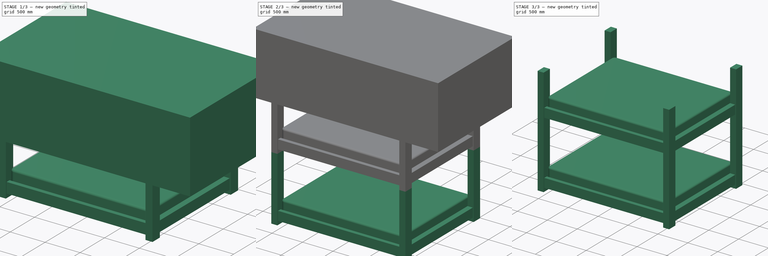
[diagram: build sequence overview — one tinted view per stage of 3, left to right]
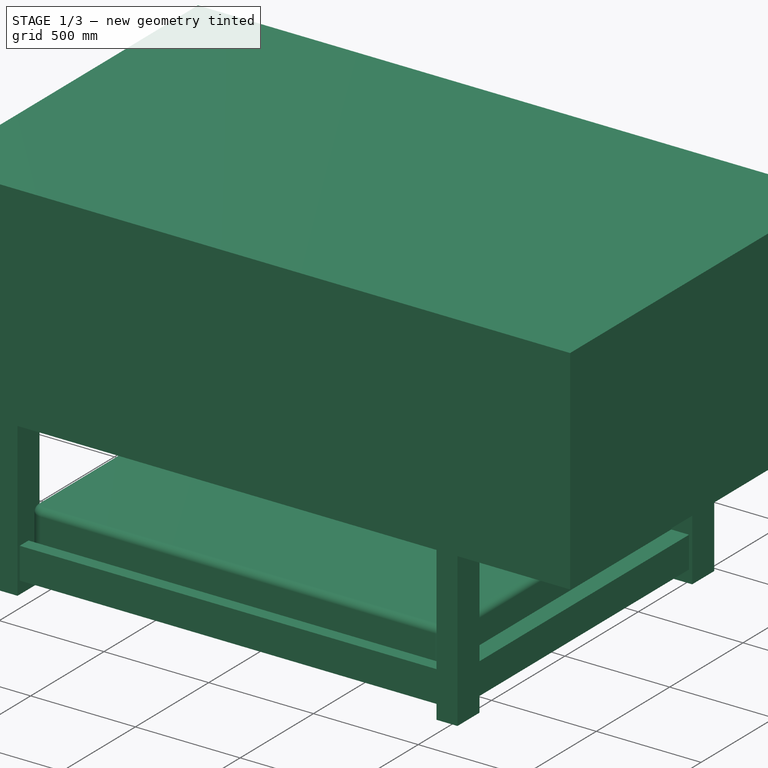
[diagram: stage 1 of 3 — iso view after this stage's code; geometry added in this stage tinted green]
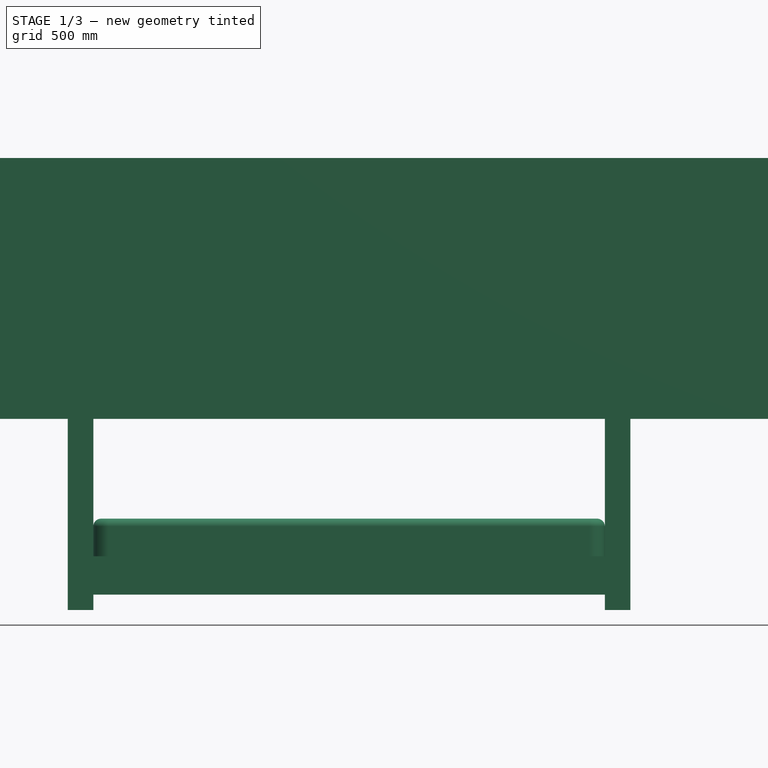
[diagram: stage 1 of 3 — front view after this stage's code; geometry added in this stage tinted green]
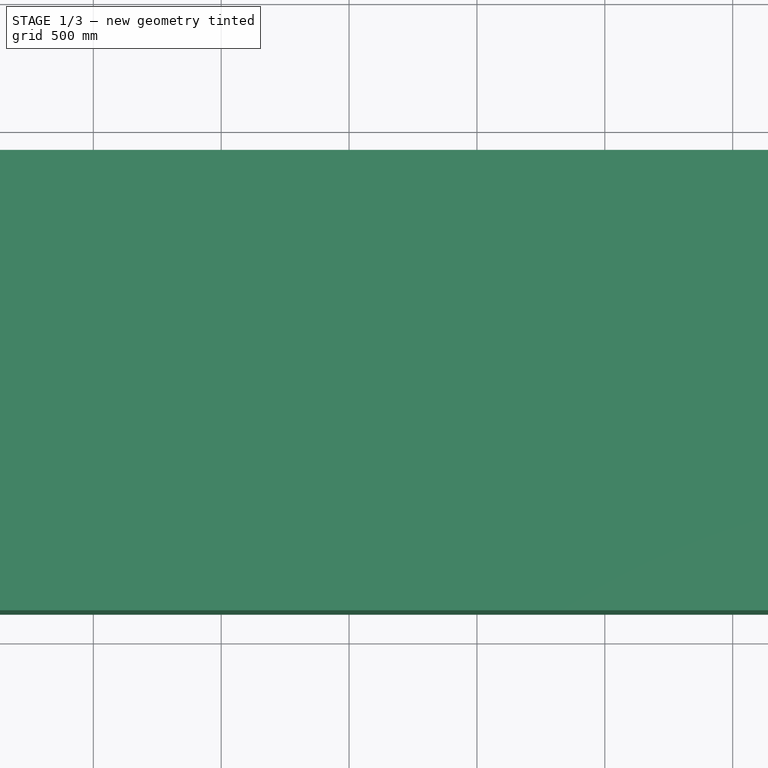
[diagram: stage 1 of 3 — top view after this stage's code; geometry added in this stage tinted green]
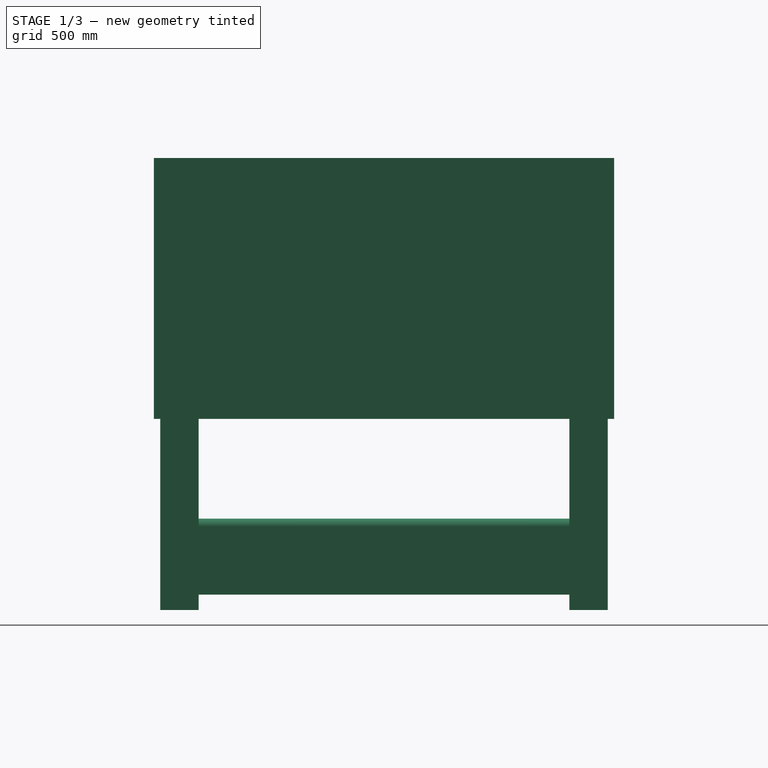
[diagram: stage 1 of 3 — right view after this stage's code; geometry added in this stage tinted green]
FCSTD DOCUMENT  (FreeCAD 0.17R13509 (Git))
Label: 190308 Bett_asm_rev01
License: All rights reserved
LicenseURL: http://en.wikipedia.org/wiki/All_rights_reserved
objects: App::FeaturePython×6, Drawing::FeatureViewPart×4, Part::FeaturePython×2, Sketcher::SketchObject×2, App::Part×1, Part::MultiFuse×1, PartDesign::Pad×1, PartDesign::ShapeBinder×1, PartDesign::Body×1, Part::Cut×1, Drawing::FeaturePage×1
note: 10 computed .brp shape members not serialized (recipe doc carries the construction recipe); baked Part::Feature solids carry a one-line shape summary decoded from their .brp

FEATURE [Part::FeaturePython] _90308_Bett_rev00_01001  # a2plus imported part (geometry in sourceFile) (typed FeaturePython)
  Placement = pos=(0,0,1060) rot=(0,0,1;0rad)
  fixedPosition = false
  sourceFile = M:/52 Proj/XX_StudioBinn/Bett/190308 Bett_rev00.FCStd
  timeLastImport = 1.5521e+09
  updateColors = true
FEATURE [Sketcher::SketchObject] Sketch
  MapMode = 5
  Placement = pos=(0,0,0) rot=(1,0,0;1.5708rad)
  Support = -> [XZ_Plane001]
  sketch-geometry (4):
    g0: LineSegment StartX=-1381.83 StartY=2680 StartZ=0 EndX=1655 EndY=2680 EndZ=0
    g1: LineSegment StartX=1655 StartY=2680 StartZ=0 EndX=1655 EndY=1660 EndZ=0
    g2: LineSegment StartX=1655 StartY=1660 StartZ=0 EndX=-1381.83 EndY=1660 EndZ=0
    g3: LineSegment StartX=-1381.83 StartY=1660 StartZ=0 EndX=-1381.83 EndY=2680 EndZ=0
  constraints (8):
    c: Coincident(g0,g1)
    c: Coincident(g1,g2)
    c: Coincident(g2,g3)
    c: Coincident(g3,g0)
    c: Horizontal(g0)
    c: Horizontal(g2)
    c: Vertical(g1)
    c: Vertical(g3)
FEATURE [PartDesign::Pad] Pad
  Length = 1800
  Length2 = 100
  Midplane = true
  Placement = pos=(0,0,0) rot=(1,0,0;1.5708rad)
  Profile = -> Sketch
  Type = 0
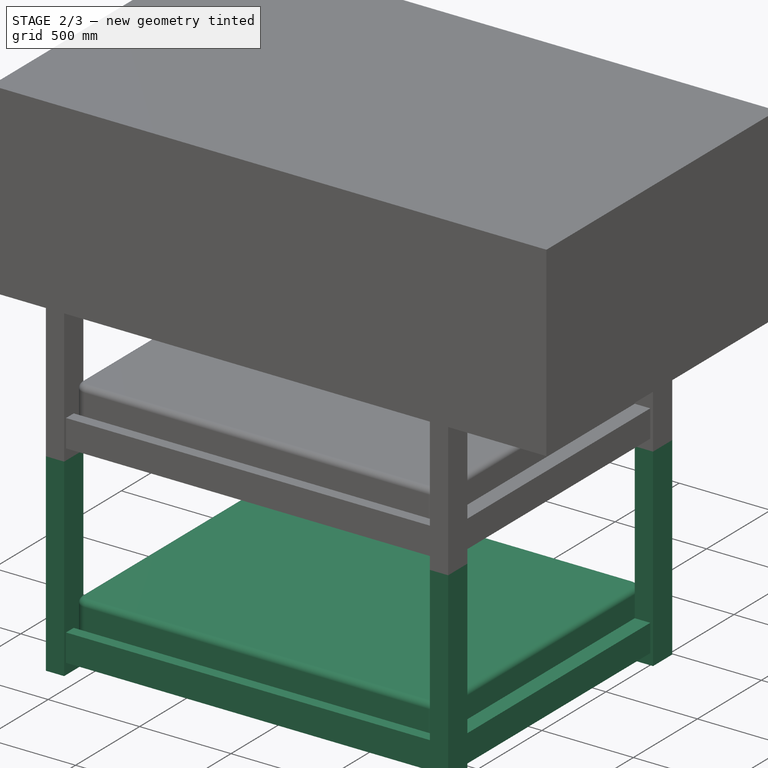
[diagram: stage 2 of 3 — iso view after this stage's code; geometry added in this stage tinted green]
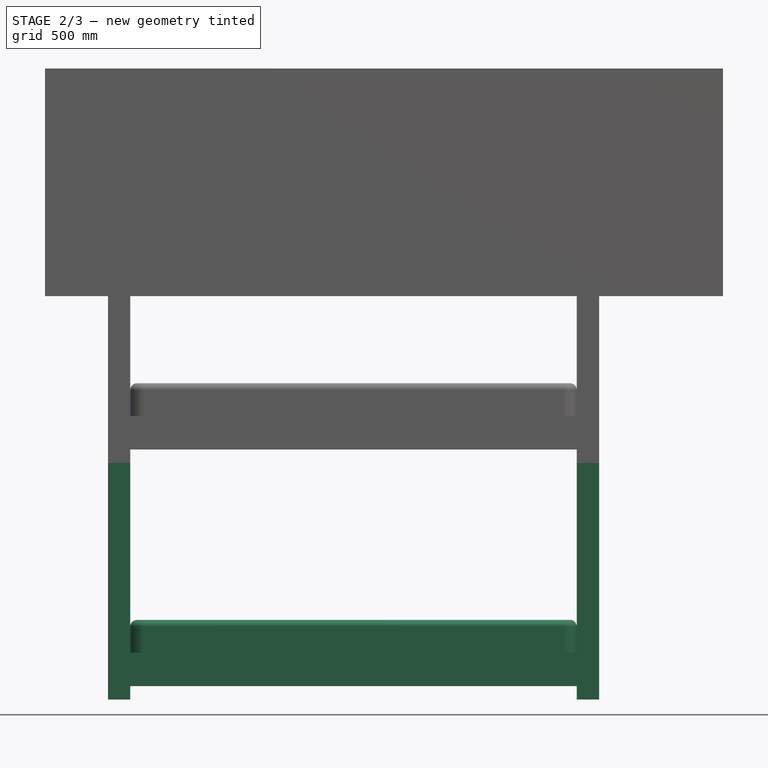
[diagram: stage 2 of 3 — front view after this stage's code; geometry added in this stage tinted green]
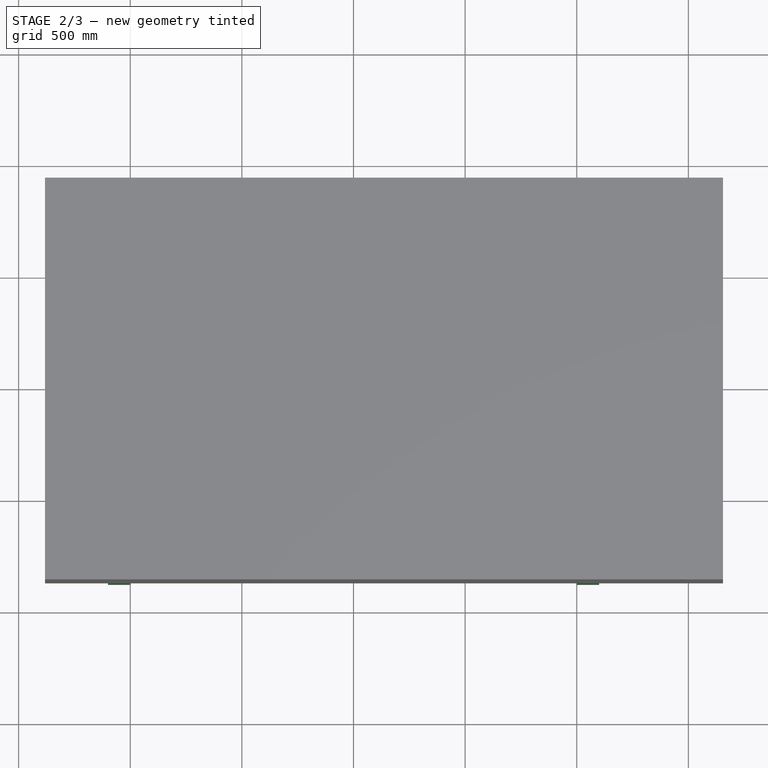
[diagram: stage 2 of 3 — top view after this stage's code; geometry added in this stage tinted green]
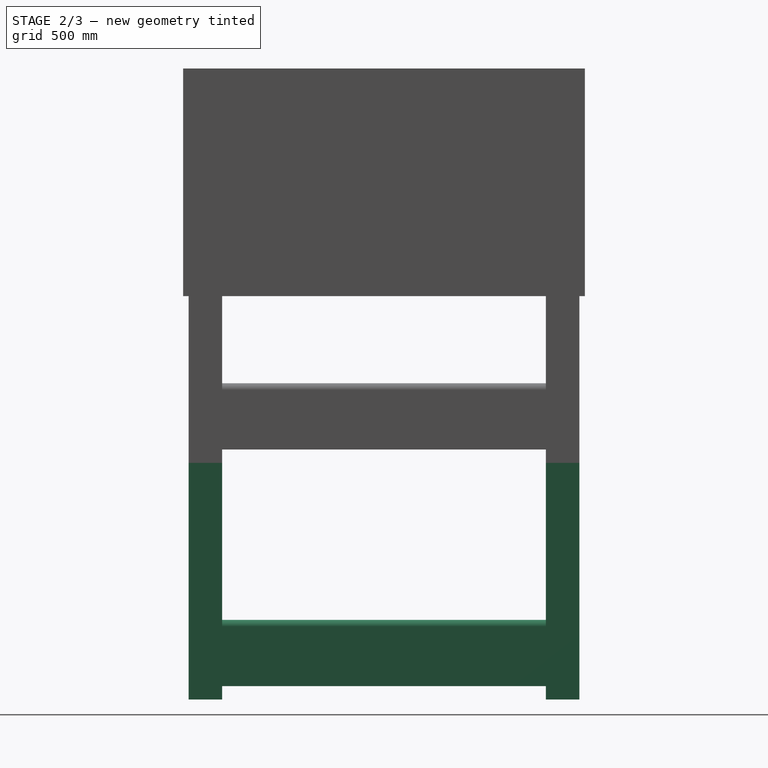
[diagram: stage 2 of 3 — right view after this stage's code; geometry added in this stage tinted green]
FEATURE [App::Part] Part
  License = CC BY 3.0
  LicenseURL = http://creativecommons.org/licenses/by/3.0/
  Origin = -> Origin
FEATURE [Part::FeaturePython] _90308_Bett_rev00_01  # a2plus imported part (geometry in sourceFile) (typed FeaturePython)
  fixedPosition = true
  sourceFile = M:/52 Proj/XX_StudioBinn/Bett/190308 Bett_rev00.FCStd
  timeLastImport = 1.5521e+09
  updateColors = true
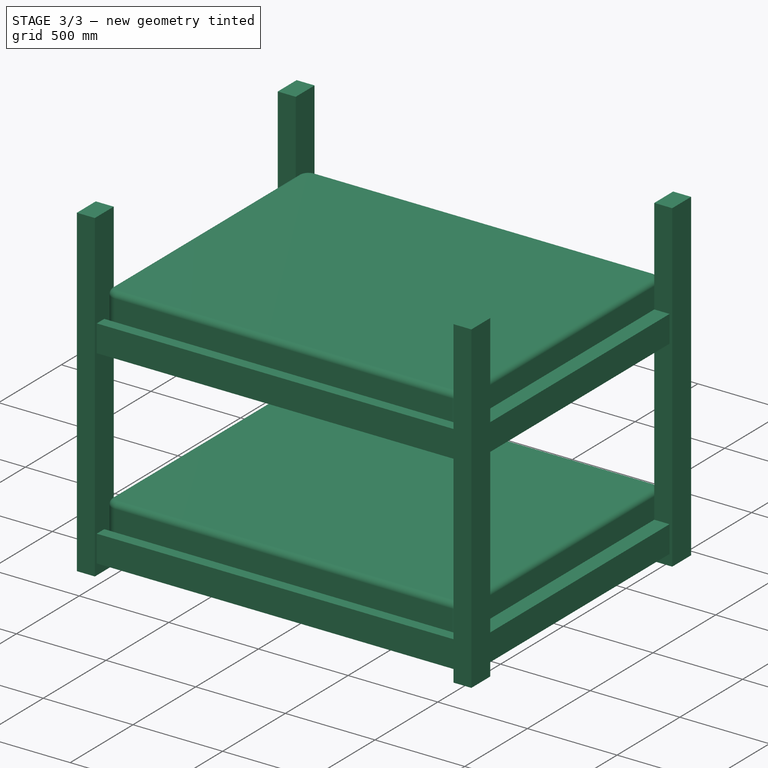
[diagram: stage 3 of 3 — iso view after this stage's code; geometry added in this stage tinted green]
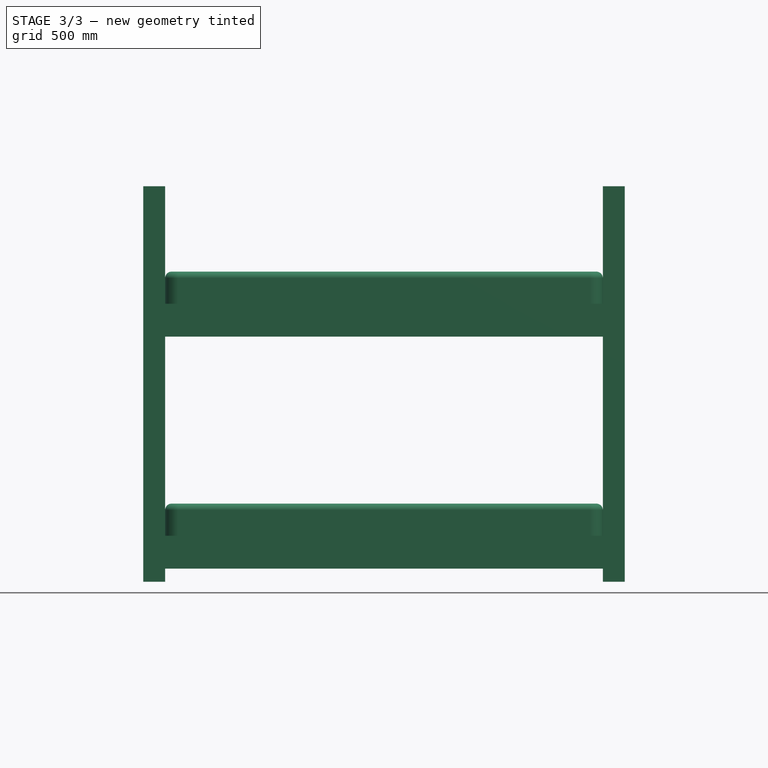
[diagram: stage 3 of 3 — front view after this stage's code; geometry added in this stage tinted green]
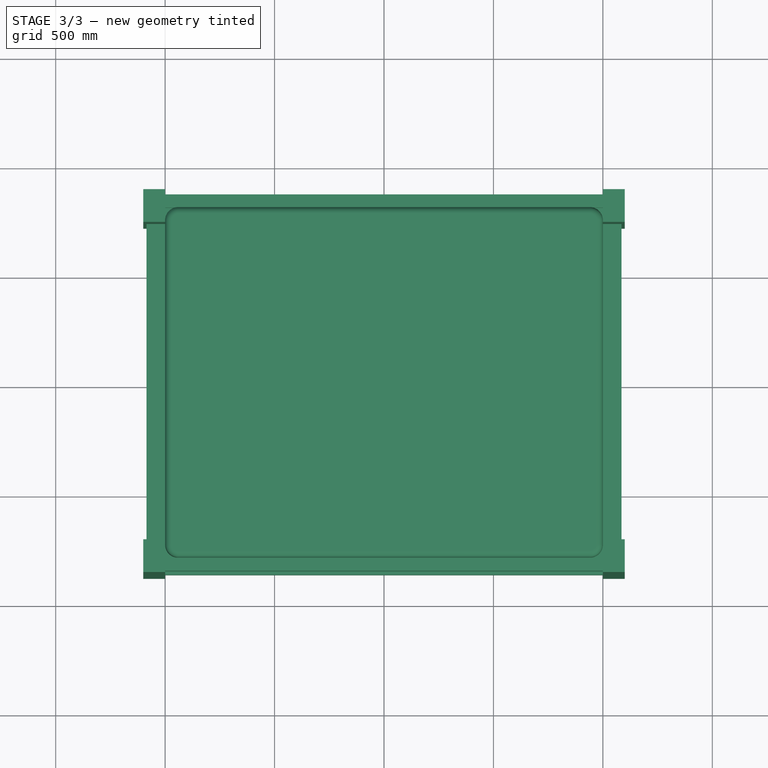
[diagram: stage 3 of 3 — top view after this stage's code; geometry added in this stage tinted green]
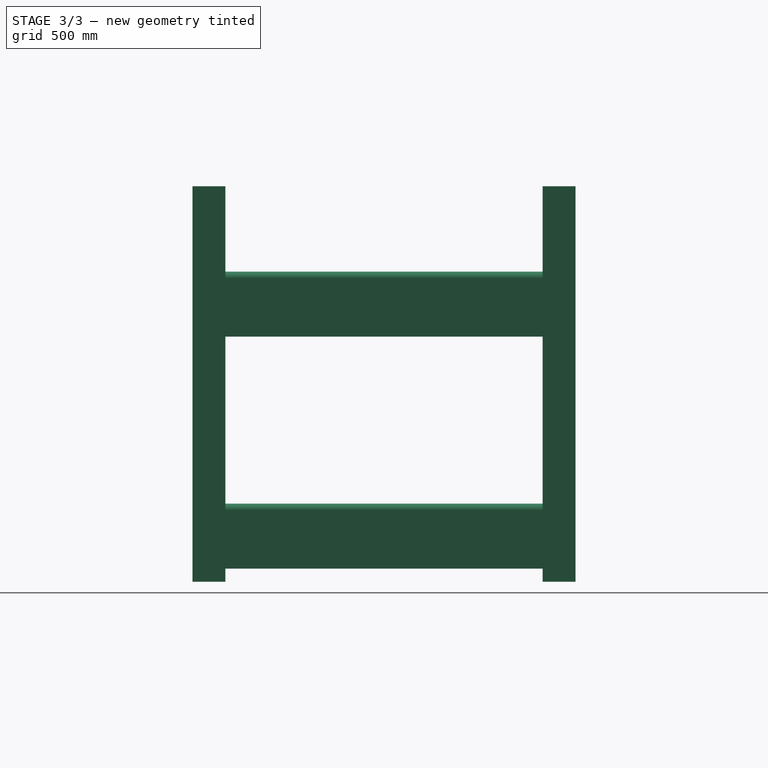
[diagram: stage 3 of 3 — right view after this stage's code; geometry added in this stage tinted green]
FEATURE [App::FeaturePython] planeConstraint01  label="planeConstraint01___90308_Bett_rev00_01"  # a2plus constraint (typed FeaturePython)
  Object1 = _90308_Bett_rev00_01001
  Object2 = _90308_Bett_rev00_01
  SubElement1 = Face54
  SubElement2 = Face54
  Type = plane
  directionConstraint = 0
  offset = 0
FEATURE [App::FeaturePython] planeConstraint01_mirror  label="planeConstraint01___90308_Bett_rev00_01001"  # a2plus constraint (typed FeaturePython)
  Object1 = _90308_Bett_rev00_01001
  Object2 = _90308_Bett_rev00_01
  SubElement1 = Face54
  SubElement2 = Face54
  Type = plane
  directionConstraint = 0
  offset = 0
FEATURE [App::FeaturePython] planeConstraint02  label="planeConstraint02___90308_Bett_rev00_01"  # a2plus constraint (typed FeaturePython)
  Object1 = _90308_Bett_rev00_01001
  Object2 = _90308_Bett_rev00_01
  SubElement1 = Face134
  SubElement2 = Face134
  Type = plane
  directionConstraint = 0
  offset = 0
FEATURE [App::FeaturePython] planeConstraint02_mirror  label="planeConstraint02___90308_Bett_rev00_01001"  # a2plus constraint (typed FeaturePython)
  Object1 = _90308_Bett_rev00_01001
  Object2 = _90308_Bett_rev00_01
  SubElement1 = Face134
  SubElement2 = Face134
  Type = plane
  directionConstraint = 0
  offset = 0
FEATURE [App::FeaturePython] planeConstraint03  label="planeConstraint03___90308_Bett_rev00_01001"  # a2plus constraint (typed FeaturePython)
  Object1 = _90308_Bett_rev00_01
  Object2 = _90308_Bett_rev00_01001
  SubElement1 = Face165
  SubElement2 = Face168
  Type = plane
  directionConstraint = 0
  offset = 0
FEATURE [App::FeaturePython] planeConstraint03_mirror  label="planeConstraint03___90308_Bett_rev00_01"  # a2plus constraint (typed FeaturePython)
  Object1 = _90308_Bett_rev00_01
  Object2 = _90308_Bett_rev00_01001
  SubElement1 = Face165
  SubElement2 = Face168
  Type = plane
  directionConstraint = 0
  offset = 0
FEATURE [Part::MultiFuse] Fusion
  Shapes = -> [_90308_Bett_rev00_01,_90308_Bett_rev00_01001]
FEATURE [PartDesign::ShapeBinder] CopyCut
FEATURE [Sketcher::SketchObject] Sketch001
  MapMode = 5
  Placement = pos=(0,700,0) rot=(1,0,0;1.5708rad)
  Support = -> [CopyCut]
FEATURE [PartDesign::Body] Body
  Group = -> [Sketch,Pad,CopyCut,Sketch001]
  Origin = -> Origin001
  Tip = -> Pad
FEATURE [Part::Cut] Cut
  Base = -> Fusion
  Tool = -> Body
FEATURE [Drawing::FeatureViewPart] Ortho  label="Ortho_0_0"
  Direction = (1,0,0)
  HiddenWidth = 0.15
  LineWidth = 0.35
  Rotation = -90
  Scale = 0.075
  ShowHiddenLines = false
  ShowSmoothLines = false
  Source = -> Cut
  Tolerance = 0.05
  ViewResult = <g id="Ortho_0_0"\n   transform="rotate(-90,174.875,167.658) translate(174.875,167.658) scale(0.075,0.075)"\n  >\n<g   fill="none"\n   stroke="rgb(0, 0, 0)"\n   stroke-linecap="butt"\n   stroke-linejoin="miter"\n   stroke-width="4.666666"\n   transform="scale(1,-1)"\n  >\n<path id= "1" d=" M 210 -725 L 210 725 " />\n<path id= "2" d=" M 913 -875 L -147 -875 " />\n<path id= "3" d=" M 913 -725 L -147 -725 " />\n<path id= "4" d=" M -147 -725 L -147 -875 " />\n<path id= "5" d=" M 913 875 L -147 875 " />\n<path id= "6" d=" M 913 725 L -147 725 " />\n<path id= "7" d=" M -147 725 L -147 875 " />\n<path id= "8" d=" M 1270 -725 L 1270 725 " />\n<path id= "9" d=" M 1660 -725 L 1660 -875 " />\n<path id= "10" d=" M 1660 -725 L 913 -725 " />\n<path id= "11" d=" M 1660 -875 L 913 -875 " />\n<path id= "12" d=" M 913 -725 L 913 -875 " />\n<path id= "13" d=" M 63 -725 L 63 725 " />\n<path id= "14" d=" M -87 -725 L -87 725 " />\n<path id= "15" d=" M 1660 725 L 1660 875 " />\n<path id= "16" d=" M 1660 725 L 913 725 " />\n<path id= "17" d=" M 1660 875 L 913 875 " />\n<path id= "18" d=" M 913 725 L 913 875 " />\n<path id= "19" d=" M 973 -725 L 973 725 " />\n<path id= "20" d=" M 1123 -725 L 1123 725 " />\n</g>\n</g>
  Visible = true
  X = 174.875
  Y = 167.658
FEATURE [Drawing::FeatureViewPart] Ortho001  label="Ortho_1_0"
  Direction = (0,-1,0)
  HiddenWidth = 0.15
  LineWidth = 0.35
  Rotation = 90
  Scale = 0.075
  ShowHiddenLines = false
  ShowSmoothLines = false
  Source = -> Cut
  Tolerance = 0.05
  ViewResult = <blob: 2493 chars omitted>
  Visible = true
  X = 412.25
  Y = 167.658
FEATURE [Drawing::FeatureViewPart] Ortho002  label="Ortho_0_-1"
  Direction = (0,0,1)
  HiddenWidth = 0.15
  LineWidth = 0.35
  Rotation = 90
  Scale = 0.075
  ShowHiddenLines = false
  ShowSmoothLines = false
  Source = -> Cut
  Tolerance = 0.05
  ViewResult = <g id="Ortho_0_-1"\n   transform="rotate(90,174.875,294.342) translate(174.875,294.342) scale(0.075,0.075)"\n  >\n<g   fill="none"\n   stroke="rgb(0, 0, 0)"\n   stroke-linecap="butt"\n   stroke-linejoin="miter"\n   stroke-width="4.666666"\n   transform="scale(1,-1)"\n  >\n<path id= "1" d=" M -1000 -725 L -1000 -875 " />\n<path id= "2" d=" M -1000 875 L -1000 725 " />\n<path id= "3" d=" M -1100 -725 L -1000 -725 " />\n<path id= "4" d=" M -1100 -875 L -1100 -725 " />\n<path id= "5" d=" M -1000 -875 L -1100 -875 " />\n<path id= "6" d=" M -1000 -860 L 1000 -860 " />\n<path id= "7" d=" M -1000 -800 L -940 -800 " />\n<path id= "8" d=" M 940 -800 L 1000 -800 " />\n<path id= "9" d=" M -1000 -725 L -1000 725 " />\n<path id= "10" d=" M -1100 875 L -1000 875 " />\n<path id= "11" d=" M -1100 725 L -1100 875 " />\n<path id= "12" d=" M -1000 725 L -1100 725 " />\n<path id= "13" d=" M -1000 800 L -940 800 " />\n<path id= "14" d=" M 940 800 L 1000 800 " />\n<path id= "15" d=" M -1000 860 L 1000 860 " />\n<path id= "16" d=" M 1000 875 L 1000 725 " />\n<path id= "17" d=" M 1000 -875 L 1000 -725 " />\n<path id= "18" d=" M -1085 725 L -1085 -725 " />\n<path id= "19" d=" M 940 -800 L -940 -800 " />\n<path d="M-940 -800 A60 60 0 0 0 -1000 -740" /><path d="M-1000 740 A60 60 0 0 0 -940 800" /><path id= "22" d=" M -940 800 L 940 800 " />\n<path id= "23" d=" M 1000 725 L 1100 725 " />\n<path id= "24" d=" M 1100 725 L 1100 875 " />\n<path id= "25" d=" M 1100 875 L 1000 875 " />\n<path id= "26" d=" M 1000 725 L 1000 -725 " />\n<path id= "27" d=" M 1100 -875 L 1000 -875 " />\n<path id= "28" d=" M 1100 -725 L 1100 -875 " />\n<path id= "29" d=" M 1000 -725 L 1100 -725 " />\n<path d="M1000 -740 A60 60 0 0 0 940 -800" /><path d="M940 800 A60 60 0 0 0 1000 740" /><path id= "32" d=" M 1085 725 L 1085 -725 " />\n</g>\n</g>
  Visible = true
  X = 174.875
  Y = 294.342
FEATURE [Drawing::FeatureViewPart] View
  Direction = (0,0,1)
  HiddenWidth = 0.15
  LineWidth = 0.35
  Rotation = 0
  ShowHiddenLines = false
  ShowSmoothLines = false
  Source = -> Cut
  Tolerance = 0.05
  ViewResult = <g id="View"\n   transform="rotate(0,10,10) translate(10,10) scale(1,1)"\n  >\n<g   fill="none"\n   stroke="rgb(0, 0, 0)"\n   stroke-linecap="butt"\n   stroke-linejoin="miter"\n   stroke-width="0.350000"\n   transform="scale(1,-1)"\n  >\n<path id= "1" d=" M -1000 -725 L -1000 -875 " />\n<path id= "2" d=" M -1000 875 L -1000 725 " />\n<path id= "3" d=" M -1100 -725 L -1000 -725 " />\n<path id= "4" d=" M -1100 -875 L -1100 -725 " />\n<path id= "5" d=" M -1000 -875 L -1100 -875 " />\n<path id= "6" d=" M -1000 -860 L 1000 -860 " />\n<path id= "7" d=" M -1000 -800 L -940 -800 " />\n<path id= "8" d=" M 940 -800 L 1000 -800 " />\n<path id= "9" d=" M -1000 -725 L -1000 725 " />\n<path id= "10" d=" M -1100 875 L -1000 875 " />\n<path id= "11" d=" M -1100 725 L -1100 875 " />\n<path id= "12" d=" M -1000 725 L -1100 725 " />\n<path id= "13" d=" M -1000 800 L -940 800 " />\n<path id= "14" d=" M 940 800 L 1000 800 " />\n<path id= "15" d=" M -1000 860 L 1000 860 " />\n<path id= "16" d=" M 1000 875 L 1000 725 " />\n<path id= "17" d=" M 1000 -875 L 1000 -725 " />\n<path id= "18" d=" M -1085 725 L -1085 -725 " />\n<path id= "19" d=" M 940 -800 L -940 -800 " />\n<path d="M-940 -800 A60 60 0 0 0 -1000 -740" /><path d="M-1000 740 A60 60 0 0 0 -940 800" /><path id= "22" d=" M -940 800 L 940 800 " />\n<path id= "23" d=" M 1000 725 L 1100 725 " />\n<path id= "24" d=" M 1100 725 L 1100 875 " />\n<path id= "25" d=" M 1100 875 L 1000 875 " />\n<path id= "26" d=" M 1000 725 L 1000 -725 " />\n<path id= "27" d=" M 1100 -875 L 1000 -875 " />\n<path id= "28" d=" M 1100 -725 L 1100 -875 " />\n<path id= "29" d=" M 1000 -725 L 1100 -725 " />\n<path d="M1000 -740 A60 60 0 0 0 940 -800" /><path d="M940 800 A60 60 0 0 0 1000 740" /><path id= "32" d=" M 1085 725 L 1085 -725 " />\n</g>\n</g>
  Visible = true
  X = 10
  Y = 10
FEATURE [Drawing::FeaturePage] Page
  EditableTexts = AUTHOR NAME | DRAWING TITLE | FreeCAD DRAWING | A2 | X / Y | SCALE | PN | DN | DD/MM/YYYY | REV A
  Group = -> [Ortho,Ortho001,Ortho002,View]
  Template = C:/Program Files/FreeCAD 0.17/data/Mod/Drawing/Templates/A2_Landscape_ISO7200.svg
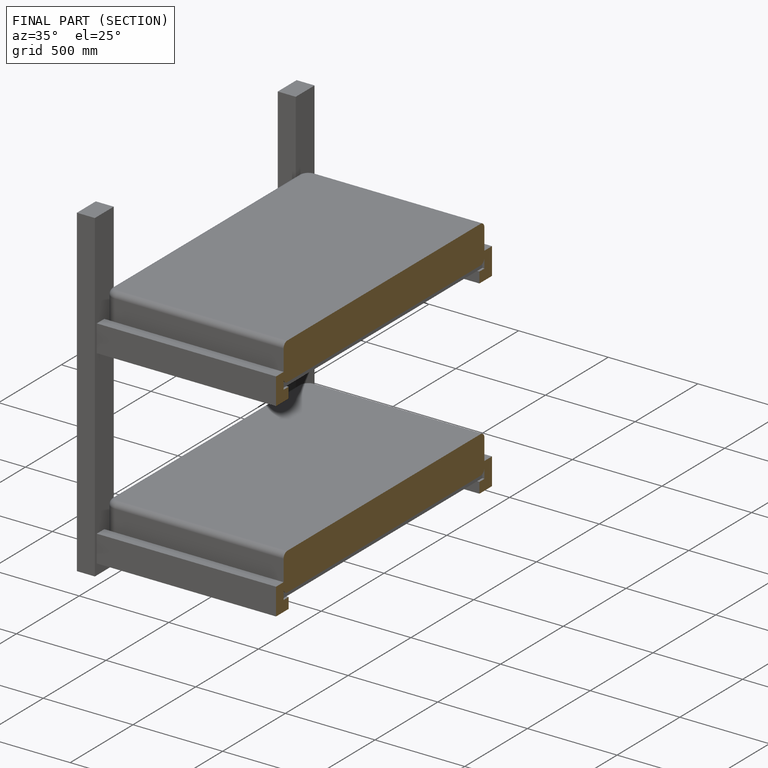
[diagram: finished part — half-section view (interior)]
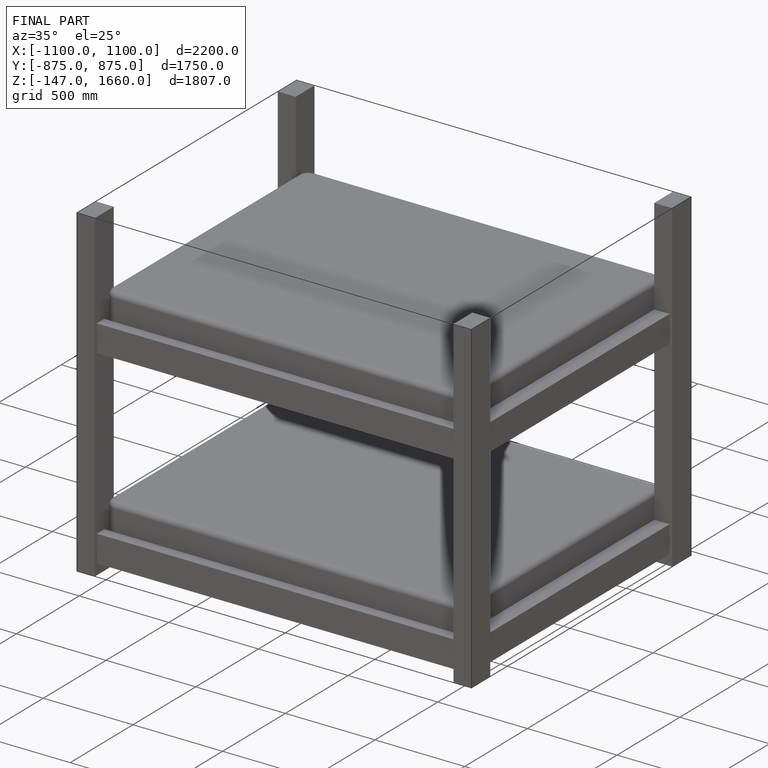
[diagram: finished part — iso view with bounding-box wireframe]
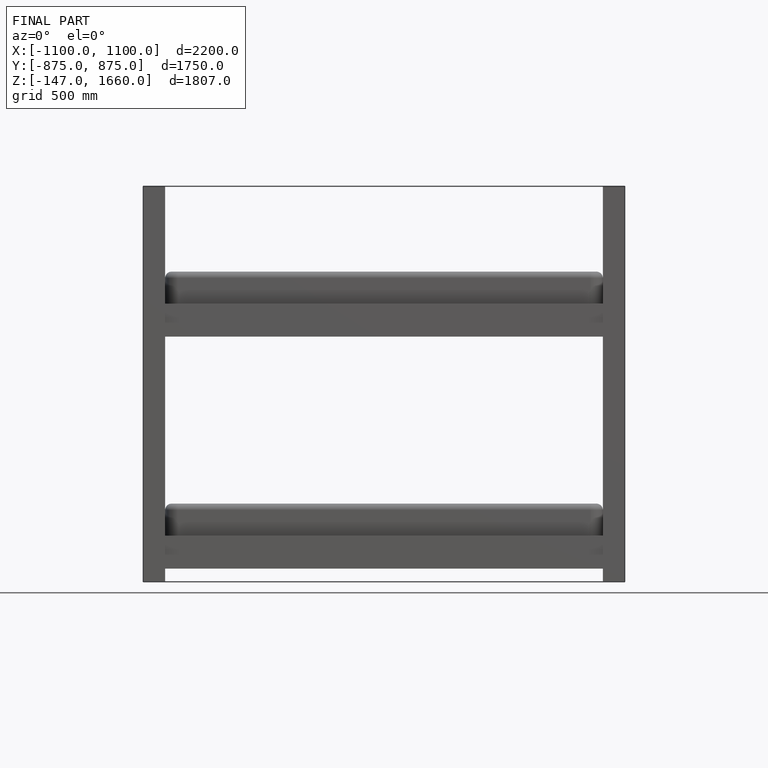
[diagram: finished part — front view with bounding-box wireframe]
